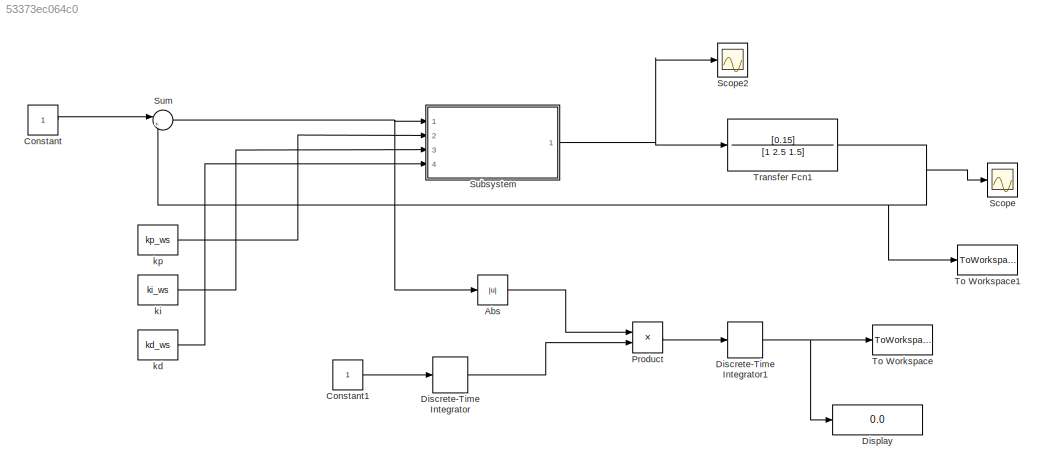
MODEL slx_53373ec064c0
KIND model
CONFIG AbsTol = auto
CONFIG EnableMultiTasking = off
CONFIG FixedStep = 0.01
CONFIG MaxStep = auto
CONFIG MinStep = auto
CONFIG RelTol = 1e-3
CONFIG SampleTimeConstraint = Unconstrained
CONFIG Solver = ode5
CONFIG SolverName = ode5
CONFIG StartTime = 0.0
CONFIG StopTime = 10
BLOCK [Abs] Abs
  SaturateOnIntegerOverflow = off
BLOCK [Constant] Constant
BLOCK [Constant] Constant1
BLOCK [DiscreteIntegrator] Discrete-Time Integrator
  ICPrevOutput = DiscIntNeverNeededParam
  ICPrevScaledInput = DiscIntNeverNeededParam
  InitialConditionSetting = State (most efficient)
  Ports = [1, 1]
  SampleTime = -1
  gainval = 1
BLOCK [DiscreteIntegrator] Discrete-Time Integrator1
  ICPrevOutput = DiscIntNeverNeededParam
  ICPrevScaledInput = DiscIntNeverNeededParam
  InitialConditionSetting = State (most efficient)
  Ports = [1, 1]
  SampleTime = -1
  gainval = 100
BLOCK [Display] Display
  Decimation = 1
  Ports = [1]
BLOCK [Product] Product
  InputSameDT = off
  OutDataTypeStr = Inherit: Inherit via internal rule
  Ports = [2, 1]
  RndMeth = Floor
  SaturateOnIntegerOverflow = off
BLOCK [Scope] Scope
  NumInputPorts = 1
  Ports = [1]
  ScopeSpecificationString = Simulink.scopes.TimeScopeBlockCfg('CurrentConfiguration', extmgr.ConfigurationSet(extmgr.Configuration('Core','General UI',true),extmgr.Configuration('Core','Source UI',true),extmgr.Configuration('Sources','WiredSimulink',true,'DataLoggingVariableName','ScopeData1'),extmgr.Configuration('Visuals','Time Domain',true,'SerializedDisplays',{struct('MinYLimReal','-0.07944','MaxYLimReal','0.71496','YLab...<+1397ch>
BLOCK [Scope] Scope2
  NumInputPorts = 1
  Ports = [1]
  ScopeSpecificationString = Simulink.scopes.TimeScopeBlockCfg('CurrentConfiguration', extmgr.ConfigurationSet(extmgr.Configuration('Core','General UI',true),extmgr.Configuration('Core','Source UI',true),extmgr.Configuration('Sources','WiredSimulink',true),extmgr.Configuration('Visuals','Time Domain',true,'SerializedDisplays',{struct('MinYLimReal','-4.31647','MaxYLimReal','38.84824','YLabelReal','','MinYLimMag','0.00000','Max...<+1370ch>
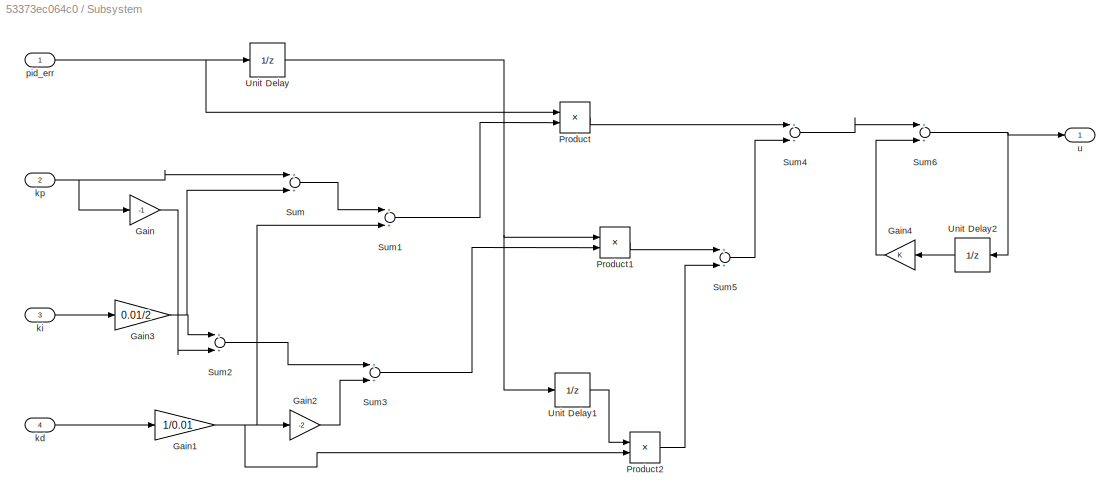
BLOCK [SubSystem] Subsystem
  Ports = [4, 1]
  RequestExecContextInheritance = off
  Variant = off
BLOCK [Gain] Subsystem/Gain
  Gain = -1
  OutDataTypeStr = Inherit: Inherit via internal rule
  ParamDataTypeStr = Inherit: Inherit via internal rule
  SaturateOnIntegerOverflow = off
BLOCK [Gain] Subsystem/Gain1
  Gain = 1/0.01
  OutDataTypeStr = Inherit: Inherit via internal rule
  ParamDataTypeStr = Inherit: Inherit via internal rule
  SaturateOnIntegerOverflow = off
BLOCK [Gain] Subsystem/Gain2
  Gain = -2
  OutDataTypeStr = Inherit: Inherit via internal rule
  ParamDataTypeStr = Inherit: Inherit via internal rule
  SaturateOnIntegerOverflow = off
BLOCK [Gain] Subsystem/Gain3
  Gain = 0.01/2
  OutDataTypeStr = Inherit: Inherit via internal rule
  ParamDataTypeStr = Inherit: Inherit via internal rule
  SaturateOnIntegerOverflow = off
BLOCK [Gain] Subsystem/Gain4
  OutDataTypeStr = Inherit: Inherit via internal rule
  ParamDataTypeStr = Inherit: Inherit via internal rule
  SaturateOnIntegerOverflow = off
BLOCK [Product] Subsystem/Product
  InputSameDT = off
  OutDataTypeStr = Inherit: Inherit via internal rule
  Ports = [2, 1]
  RndMeth = Floor
  SaturateOnIntegerOverflow = off
BLOCK [Product] Subsystem/Product1
  InputSameDT = off
  OutDataTypeStr = Inherit: Inherit via internal rule
  Ports = [2, 1]
  RndMeth = Floor
  SaturateOnIntegerOverflow = off
BLOCK [Product] Subsystem/Product2
  InputSameDT = off
  OutDataTypeStr = Inherit: Inherit via internal rule
  Ports = [2, 1]
  RndMeth = Floor
  SaturateOnIntegerOverflow = off
BLOCK [Sum] Subsystem/Sum
  InputSameDT = off
  OutDataTypeStr = Inherit: Inherit via internal rule
  Ports = [2, 1]
  SaturateOnIntegerOverflow = off
BLOCK [Sum] Subsystem/Sum1
  InputSameDT = off
  OutDataTypeStr = Inherit: Inherit via internal rule
  Ports = [2, 1]
  SaturateOnIntegerOverflow = off
BLOCK [Sum] Subsystem/Sum2
  InputSameDT = off
  OutDataTypeStr = Inherit: Inherit via internal rule
  Ports = [2, 1]
  SaturateOnIntegerOverflow = off
BLOCK [Sum] Subsystem/Sum3
  InputSameDT = off
  OutDataTypeStr = Inherit: Inherit via internal rule
  Ports = [2, 1]
  SaturateOnIntegerOverflow = off
BLOCK [Sum] Subsystem/Sum4
  InputSameDT = off
  OutDataTypeStr = Inherit: Inherit via internal rule
  Ports = [2, 1]
  SaturateOnIntegerOverflow = off
BLOCK [Sum] Subsystem/Sum5
  InputSameDT = off
  OutDataTypeStr = Inherit: Inherit via internal rule
  Ports = [2, 1]
  SaturateOnIntegerOverflow = off
BLOCK [Sum] Subsystem/Sum6
  InputSameDT = off
  OutDataTypeStr = Inherit: Inherit via internal rule
  Ports = [2, 1]
  SaturateOnIntegerOverflow = off
BLOCK [UnitDelay] Subsystem/Unit Delay
  InputProcessing = Elements as channels (sample based)
  SampleTime = -1
BLOCK [UnitDelay] Subsystem/Unit Delay1
  InputProcessing = Elements as channels (sample based)
  SampleTime = -1
BLOCK [UnitDelay] Subsystem/Unit Delay2
  InputProcessing = Elements as channels (sample based)
  SampleTime = -1
BLOCK [Inport] Subsystem/kd
  IconDisplay = Port number
  Port = 4
BLOCK [Inport] Subsystem/ki
  IconDisplay = Port number
  Port = 3
BLOCK [Inport] Subsystem/kp
  IconDisplay = Port number
  Port = 2
BLOCK [Inport] Subsystem/pid_err
  IconDisplay = Port number
BLOCK [Outport] Subsystem/u
  IconDisplay = Port number
BLOCK [Sum] Sum
  IconShape = round
  InputSameDT = off
  Inputs = |+-
  OutDataTypeStr = Inherit: Inherit via internal rule
  Ports = [2, 1]
  SaturateOnIntegerOverflow = off
BLOCK [ToWorkspace] To Workspace
  FixptAsFi = on
  MaxDataPoints = inf
  Ports = [1]
  SampleTime = -1
  Save2DSignal = 3-D array (concatenate along third dimension)
  SaveFormat = Timeseries
  VariableName = error
BLOCK [ToWorkspace] To Workspace1
  FixptAsFi = on
  MaxDataPoints = inf
  Ports = [1]
  SampleTime = -1
  Save2DSignal = 3-D array (concatenate along third dimension)
  SaveFormat = Timeseries
  VariableName = output
BLOCK [TransferFcn] Transfer Fcn1
  Denominator = [1 2.5 1.5]
  Numerator = [0.15]
BLOCK [Constant] kd
  Value = kd_ws
BLOCK [Constant] ki
  Value = ki_ws
BLOCK [Constant] kp
  Value = kp_ws
LINE Abs:1 -> Product:1
LINE Constant1:1 -> Discrete-Time Integrator:1
LINE Constant:1 -> Sum:1
NET Discrete-Time Integrator1:1 -> Display:1, To Workspace:1
LINE Discrete-Time Integrator:1 -> Product:2
LINE Product:1 -> Discrete-Time Integrator1:1
NET Subsystem/Gain1:1 -> Subsystem/Gain2:1, Subsystem/Product2:2, Subsystem/Sum1:2
LINE Subsystem/Gain2:1 -> Subsystem/Sum3:2
NET Subsystem/Gain3:1 -> Subsystem/Sum2:1, Subsystem/Sum:2
LINE Subsystem/Gain4:1 -> Subsystem/Sum6:2
LINE Subsystem/Gain:1 -> Subsystem/Sum2:2
LINE Subsystem/Product1:1 -> Subsystem/Sum5:1
LINE Subsystem/Product2:1 -> Subsystem/Sum5:2
LINE Subsystem/Product:1 -> Subsystem/Sum4:1
LINE Subsystem/Sum1:1 -> Subsystem/Product:2
LINE Subsystem/Sum2:1 -> Subsystem/Sum3:1
LINE Subsystem/Sum3:1 -> Subsystem/Product1:2
LINE Subsystem/Sum4:1 -> Subsystem/Sum6:1
LINE Subsystem/Sum5:1 -> Subsystem/Sum4:2
NET Subsystem/Sum6:1 -> Subsystem/Unit Delay2:1, Subsystem/u:1
LINE Subsystem/Sum:1 -> Subsystem/Sum1:1
LINE Subsystem/Unit Delay1:1 -> Subsystem/Product2:1
LINE Subsystem/Unit Delay2:1 -> Subsystem/Gain4:1
NET Subsystem/Unit Delay:1 -> Subsystem/Product1:1, Subsystem/Unit Delay1:1
LINE Subsystem/kd:1 -> Subsystem/Gain1:1
LINE Subsystem/ki:1 -> Subsystem/Gain3:1
NET Subsystem/kp:1 -> Subsystem/Gain:1, Subsystem/Sum:1
NET Subsystem/pid_err:1 -> Subsystem/Product:1, Subsystem/Unit Delay:1
NET Subsystem:1 -> Scope2:1, Transfer Fcn1:1
NET Sum:1 -> Abs:1, Subsystem:1
NET Transfer Fcn1:1 -> Scope:1, Sum:2, To Workspace1:1
LINE kd:1 -> Subsystem:4
LINE ki:1 -> Subsystem:3
LINE kp:1 -> Subsystem:2
note: NET lines group one-source signal fan-out (src -> all destinations, sorted); 1:1 wires keep LINE
